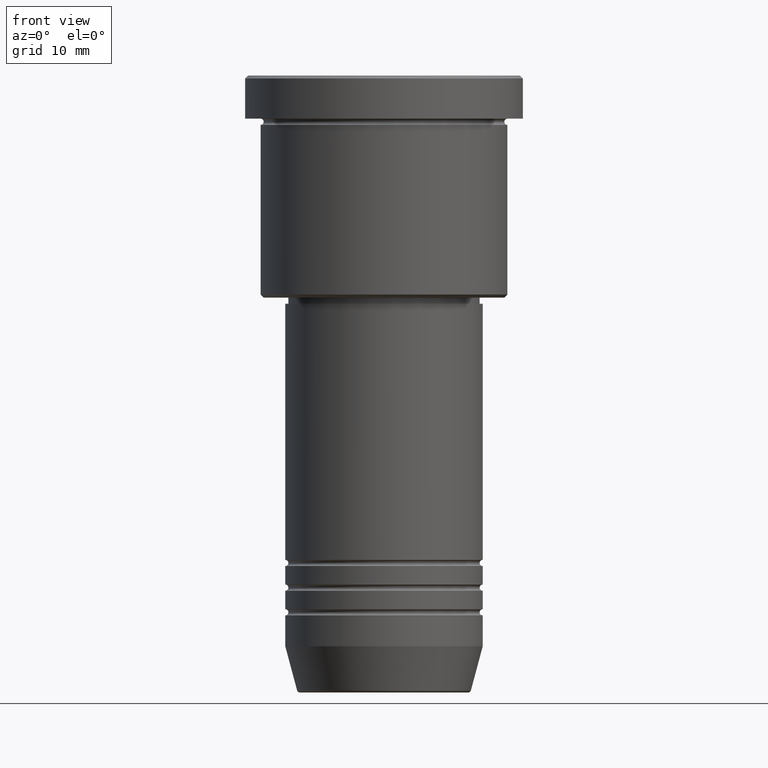
[diagram: clean part render]
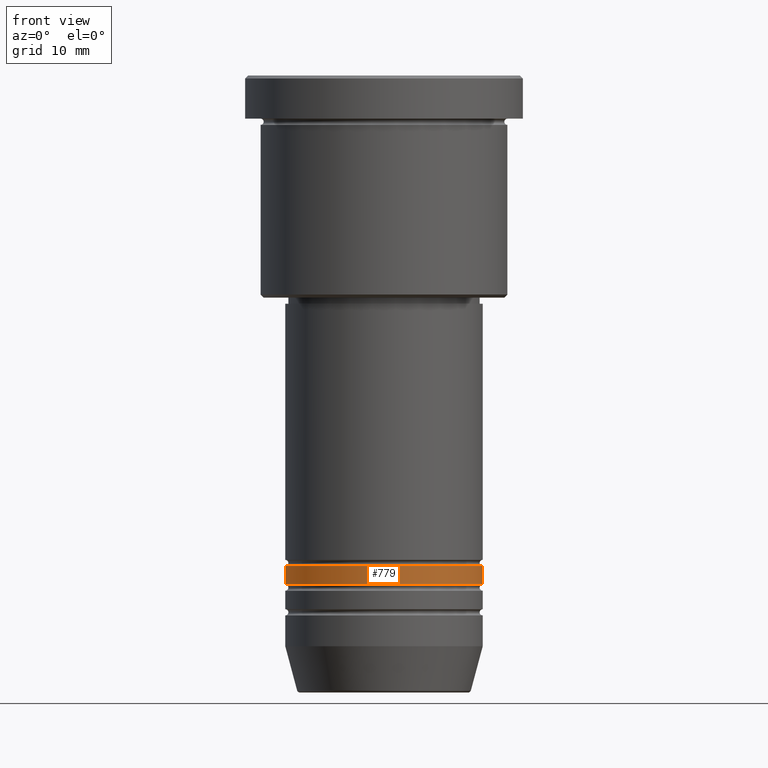
[diagram: same view with one face highlighted and labeled with its STEP entity id]
A machine part, front view. The second image highlights one B-rep face of the part: STEP entity #779.
In plain terms, the highlighted cylindrical surface (partial cylindrical patch) has radius 16 mm, axis along (-0, -0, 1).
Its self-contained STEP definition (entity closure, byte-faithful):
#44 = VERTEX_POINT ( 'NONE', #1111 ) ;
#59 = EDGE_CURVE ( 'NONE', #1148, #44, #425, .T. ) ;
#62 = LINE ( 'NONE', #777, #973 ) ;
#81 = DIRECTION ( 'NONE',  ( 1.000000000000000000, 0.000000000000000000, 0.000000000000000000 ) ) ;
#160 = EDGE_CURVE ( 'NONE', #849, #1148, #868, .T. ) ;
#171 = CARTESIAN_POINT ( 'NONE',  ( 0.000000000000000000, 0.000000000000000000, -82.49999999999998579 ) ) ;
#205 = CARTESIAN_POINT ( 'NONE',  ( -16.00000000000000355, 1.959434878635765526E-15, -82.49999999999998579 ) ) ;
#221 = AXIS2_PLACEMENT_3D ( 'NONE', #557, #909, #468 ) ;
#226 = CYLINDRICAL_SURFACE ( 'NONE', #930, 16.00000000000000000 ) ;
#235 = CARTESIAN_POINT ( 'NONE',  ( -16.00000000000000000, 1.959434878635765131E-15, -79.49999999999998579 ) ) ;
#295 = ORIENTED_EDGE ( 'NONE', *, *, #376, .T. ) ;
#329 = DIRECTION ( 'NONE',  ( -0.000000000000000000, -0.000000000000000000, 1.000000000000000000 ) ) ;
#376 = EDGE_CURVE ( 'NONE', #849, #615, #566, .T. ) ;
#405 = VECTOR ( 'NONE', #775, 1000.000000000000000 ) ;
#425 = CIRCLE ( 'NONE', #221, 16.00000000000000000 ) ;
#468 = DIRECTION ( 'NONE',  ( 1.000000000000000000, 0.000000000000000000, 0.000000000000000000 ) ) ;
#484 = DIRECTION ( 'NONE',  ( -0.000000000000000000, -0.000000000000000000, 1.000000000000000000 ) ) ;
#489 = DIRECTION ( 'NONE',  ( 1.000000000000000000, 0.000000000000000000, 0.000000000000000000 ) ) ;
#505 = EDGE_CURVE ( 'NONE', #615, #44, #62, .T. ) ;
#557 = CARTESIAN_POINT ( 'NONE',  ( 0.000000000000000000, 0.000000000000000000, -79.49999999999998579 ) ) ;
#566 = CIRCLE ( 'NONE', #929, 16.00000000000000355 ) ;
#599 = DIRECTION ( 'NONE',  ( -0.000000000000000000, -0.000000000000000000, 1.000000000000000000 ) ) ;
#615 = VERTEX_POINT ( 'NONE', #1179 ) ;
#678 = CARTESIAN_POINT ( 'NONE',  ( -16.00000000000000000, 1.959434878635765131E-15, 0.000000000000000000 ) ) ;
#736 = ORIENTED_EDGE ( 'NONE', *, *, #59, .F. ) ;
#740 = ORIENTED_EDGE ( 'NONE', *, *, #505, .T. ) ;
#775 = DIRECTION ( 'NONE',  ( -0.000000000000000000, -0.000000000000000000, 1.000000000000000000 ) ) ;
#777 = CARTESIAN_POINT ( 'NONE',  ( 16.00000000000000000, 0.000000000000000000, 0.000000000000000000 ) ) ;
#779 = ADVANCED_FACE ( 'NONE', ( #827 ), #226, .T. ) ;
#827 = FACE_OUTER_BOUND ( 'NONE', #1182, .T. ) ;
#849 = VERTEX_POINT ( 'NONE', #205 ) ;
#868 = LINE ( 'NONE', #678, #405 ) ;
#909 = DIRECTION ( 'NONE',  ( -0.000000000000000000, -0.000000000000000000, 1.000000000000000000 ) ) ;
#929 = AXIS2_PLACEMENT_3D ( 'NONE', #171, #599, #81 ) ;
#930 = AXIS2_PLACEMENT_3D ( 'NONE', #1026, #484, #489 ) ;
#973 = VECTOR ( 'NONE', #329, 1000.000000000000000 ) ;
#1021 = ORIENTED_EDGE ( 'NONE', *, *, #160, .F. ) ;
#1026 = CARTESIAN_POINT ( 'NONE',  ( 0.000000000000000000, 0.000000000000000000, 0.000000000000000000 ) ) ;
#1111 = CARTESIAN_POINT ( 'NONE',  ( 16.00000000000000000, 0.000000000000000000, -79.49999999999998579 ) ) ;
#1148 = VERTEX_POINT ( 'NONE', #235 ) ;
#1179 = CARTESIAN_POINT ( 'NONE',  ( 16.00000000000000355, 0.000000000000000000, -82.49999999999998579 ) ) ;
#1182 = EDGE_LOOP ( 'NONE', ( #1021, #295, #740, #736 ) ) ;